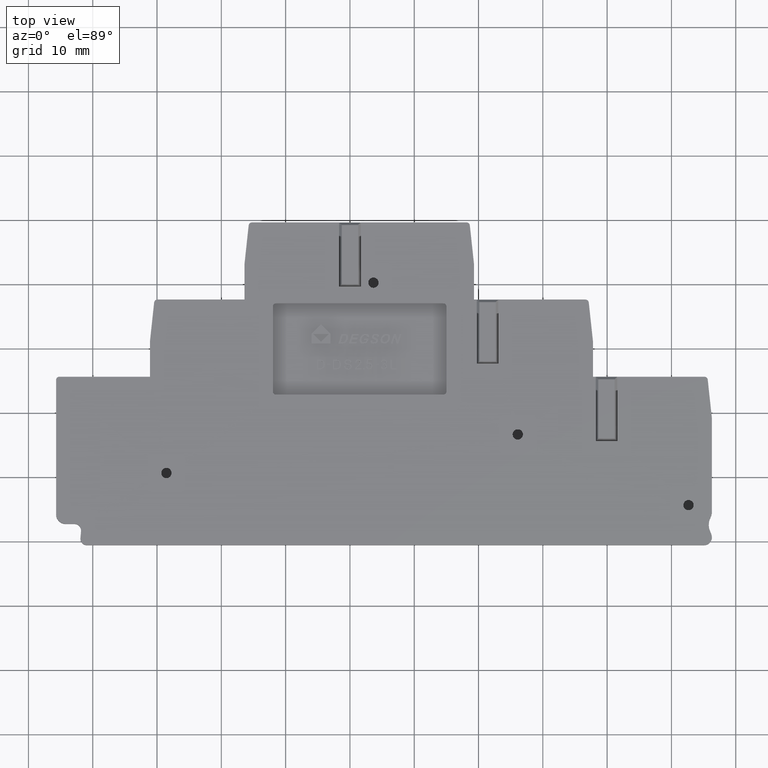
[diagram: clean part render]
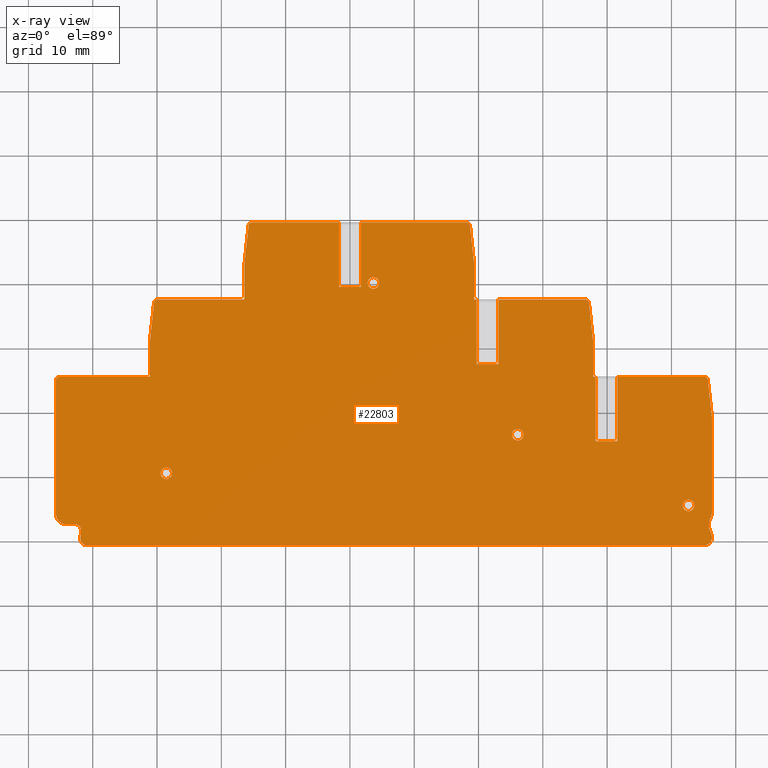
[diagram: x-ray — body ghosted, one internal face saturated and labeled with its STEP entity id]
A machine part, top view, then the same camera in x-ray: the body is ghosted and one INTERNAL B-rep face — a face not visible from any outside direction — is saturated and labeled: STEP entity #22803.
In plain terms, the highlighted planar face has unit normal (0, 0, -1).
Its self-contained STEP definition (entity closure, byte-faithful):
#925=PLANE('',#24342);
#1125=CIRCLE('',#23599,1.);
#1127=CIRCLE('',#23603,1.5);
#1130=CIRCLE('',#23607,0.999999999999994);
#1252=CIRCLE('',#24148,0.8899999999996);
#1254=CIRCLE('',#24151,0.8899999999996);
#1256=CIRCLE('',#24154,0.8899999999996);
#1258=CIRCLE('',#24157,0.8899999999996);
#1276=CIRCLE('',#24192,1.2);
#1279=CIRCLE('',#24196,2.);
#1281=CIRCLE('',#24199,2.);
#1283=CIRCLE('',#24202,2.5);
#1300=CIRCLE('',#24241,0.5);
#1303=CIRCLE('',#24247,2.);
#1304=CIRCLE('',#24250,0.5);
#1307=CIRCLE('',#24256,2.);
#1308=CIRCLE('',#24259,0.5);
#1311=CIRCLE('',#24267,0.5);
#1312=CIRCLE('',#24270,2.);
#1315=CIRCLE('',#24279,0.5);
#1316=CIRCLE('',#24282,2.);
#1319=CIRCLE('',#24291,0.5);
#1320=CIRCLE('',#24294,2.);
#2788=LINE('',#35361,#5326);
#2795=LINE('',#35383,#5333);
#3876=LINE('',#38783,#6414);
#3880=LINE('',#38795,#6418);
#3882=LINE('',#38800,#6420);
#3887=LINE('',#38813,#6425);
#3891=LINE('',#38825,#6429);
#3893=LINE('',#38830,#6431);
#3898=LINE('',#38843,#6436);
#3906=LINE('',#38863,#6444);
#3910=LINE('',#38871,#6448);
#3911=LINE('',#38873,#6449);
#3916=LINE('',#38883,#6454);
#3917=LINE('',#38885,#6455);
#3921=LINE('',#38897,#6459);
#3924=LINE('',#38906,#6462);
#3928=LINE('',#38915,#6466);
#3932=LINE('',#38923,#6470);
#3940=LINE('',#38938,#6478);
#3943=LINE('',#38944,#6481);
#3944=LINE('',#38946,#6482);
#3949=LINE('',#38959,#6487);
#3951=LINE('',#38967,#6489);
#3955=LINE('',#38976,#6493);
#3959=LINE('',#38984,#6497);
#3967=LINE('',#38999,#6505);
#3970=LINE('',#39005,#6508);
#3971=LINE('',#39007,#6509);
#3976=LINE('',#39020,#6514);
#4050=LINE('',#39175,#6588);
#4053=LINE('',#39350,#6591);
#5326=VECTOR('',#27124,1000.);
#5333=VECTOR('',#27145,1000.);
#6414=VECTOR('',#29488,1000.);
#6418=VECTOR('',#29500,1000.);
#6420=VECTOR('',#29504,1000.);
#6425=VECTOR('',#29517,1000.);
#6429=VECTOR('',#29529,1000.);
#6431=VECTOR('',#29533,1000.);
#6436=VECTOR('',#29546,1000.);
#6444=VECTOR('',#29562,1000.);
#6448=VECTOR('',#29566,1000.);
#6449=VECTOR('',#29569,1000.);
#6454=VECTOR('',#29576,1000.);
#6455=VECTOR('',#29579,1000.);
#6459=VECTOR('',#29591,1000.);
#6462=VECTOR('',#29602,1000.);
#6466=VECTOR('',#29608,1000.);
#6470=VECTOR('',#29612,1000.);
#6478=VECTOR('',#29622,1000.);
#6481=VECTOR('',#29627,1000.);
#6482=VECTOR('',#29630,1000.);
#6487=VECTOR('',#29643,1000.);
#6489=VECTOR('',#29653,1000.);
#6493=VECTOR('',#29659,1000.);
#6497=VECTOR('',#29663,1000.);
#6505=VECTOR('',#29673,1000.);
#6508=VECTOR('',#29678,1000.);
#6509=VECTOR('',#29681,1000.);
#6514=VECTOR('',#29694,1000.);
#6588=VECTOR('',#29854,1000.);
#6591=VECTOR('',#29867,1000.);
#12964=ORIENTED_EDGE('',*,*,#16140,.T.);
#12965=ORIENTED_EDGE('',*,*,#16138,.T.);
#12966=ORIENTED_EDGE('',*,*,#16136,.T.);
#12967=ORIENTED_EDGE('',*,*,#16134,.T.);
#12968=ORIENTED_EDGE('',*,*,#16443,.T.);
#12969=ORIENTED_EDGE('',*,*,#14806,.T.);
#12970=ORIENTED_EDGE('',*,*,#14810,.T.);
#12971=ORIENTED_EDGE('',*,*,#14819,.T.);
#12972=ORIENTED_EDGE('',*,*,#14821,.T.);
#12973=ORIENTED_EDGE('',*,*,#14814,.T.);
#12974=ORIENTED_EDGE('',*,*,#16205,.T.);
#12975=ORIENTED_EDGE('',*,*,#16206,.T.);
#12976=ORIENTED_EDGE('',*,*,#16211,.T.);
#12977=ORIENTED_EDGE('',*,*,#16213,.T.);
#12978=ORIENTED_EDGE('',*,*,#16217,.T.);
#12979=ORIENTED_EDGE('',*,*,#16220,.T.);
#12980=ORIENTED_EDGE('',*,*,#16221,.T.);
#12981=ORIENTED_EDGE('',*,*,#16226,.T.);
#12982=ORIENTED_EDGE('',*,*,#16228,.T.);
#12983=ORIENTED_EDGE('',*,*,#16232,.T.);
#12984=ORIENTED_EDGE('',*,*,#16235,.T.);
#12985=ORIENTED_EDGE('',*,*,#16236,.T.);
#12986=ORIENTED_EDGE('',*,*,#16249,.T.);
#12987=ORIENTED_EDGE('',*,*,#16250,.T.);
#12988=ORIENTED_EDGE('',*,*,#16255,.F.);
#12989=ORIENTED_EDGE('',*,*,#16256,.T.);
#12990=ORIENTED_EDGE('',*,*,#16245,.T.);
#12991=ORIENTED_EDGE('',*,*,#16260,.T.);
#12992=ORIENTED_EDGE('',*,*,#16262,.T.);
#12993=ORIENTED_EDGE('',*,*,#16264,.T.);
#12994=ORIENTED_EDGE('',*,*,#16267,.T.);
#12995=ORIENTED_EDGE('',*,*,#16275,.T.);
#12996=ORIENTED_EDGE('',*,*,#16283,.F.);
#12997=ORIENTED_EDGE('',*,*,#16286,.F.);
#12998=ORIENTED_EDGE('',*,*,#16287,.F.);
#12999=ORIENTED_EDGE('',*,*,#16271,.T.);
#13000=ORIENTED_EDGE('',*,*,#16291,.T.);
#13001=ORIENTED_EDGE('',*,*,#16294,.T.);
#13002=ORIENTED_EDGE('',*,*,#16295,.T.);
#13003=ORIENTED_EDGE('',*,*,#16298,.T.);
#13004=ORIENTED_EDGE('',*,*,#16306,.T.);
#13005=ORIENTED_EDGE('',*,*,#16314,.T.);
#13006=ORIENTED_EDGE('',*,*,#16317,.F.);
#13007=ORIENTED_EDGE('',*,*,#16318,.F.);
#13008=ORIENTED_EDGE('',*,*,#16302,.T.);
#13009=ORIENTED_EDGE('',*,*,#16322,.T.);
#13010=ORIENTED_EDGE('',*,*,#16325,.T.);
#13011=ORIENTED_EDGE('',*,*,#16326,.T.);
#13012=ORIENTED_EDGE('',*,*,#16401,.T.);
#13013=ORIENTED_EDGE('',*,*,#16181,.F.);
#13014=ORIENTED_EDGE('',*,*,#16186,.F.);
#13015=ORIENTED_EDGE('',*,*,#16183,.F.);
#13016=ORIENTED_EDGE('',*,*,#16174,.T.);
#14806=EDGE_CURVE('',#17561,#17562,#1125,.T.);
#14810=EDGE_CURVE('',#17562,#17565,#2788,.T.);
#14814=EDGE_CURVE('',#17569,#17567,#1127,.T.);
#14819=EDGE_CURVE('',#17565,#17572,#1130,.T.);
#14821=EDGE_CURVE('',#17572,#17569,#2795,.T.);
#16134=EDGE_CURVE('',#18471,#18471,#1252,.T.);
#16136=EDGE_CURVE('',#18473,#18473,#1254,.T.);
#16138=EDGE_CURVE('',#18475,#18475,#1256,.T.);
#16140=EDGE_CURVE('',#18477,#18477,#1258,.T.);
#16174=EDGE_CURVE('',#18503,#18504,#1276,.T.);
#16181=EDGE_CURVE('',#18510,#18508,#1279,.T.);
#16183=EDGE_CURVE('',#18503,#18512,#1281,.T.);
#16186=EDGE_CURVE('',#18512,#18510,#1283,.T.);
#16205=EDGE_CURVE('',#17567,#18530,#3876,.T.);
#16206=EDGE_CURVE('',#18530,#18531,#1300,.T.);
#16211=EDGE_CURVE('',#18531,#18534,#3880,.T.);
#16213=EDGE_CURVE('',#18534,#18536,#3882,.T.);
#16217=EDGE_CURVE('',#18536,#18538,#1303,.T.);
#16220=EDGE_CURVE('',#18538,#18540,#3887,.T.);
#16221=EDGE_CURVE('',#18540,#18541,#1304,.T.);
#16226=EDGE_CURVE('',#18541,#18544,#3891,.T.);
#16228=EDGE_CURVE('',#18544,#18546,#3893,.T.);
#16232=EDGE_CURVE('',#18546,#18548,#1307,.T.);
#16235=EDGE_CURVE('',#18548,#18550,#3898,.T.);
#16236=EDGE_CURVE('',#18550,#18551,#1308,.T.);
#16245=EDGE_CURVE('',#18559,#18558,#3906,.T.);
#16249=EDGE_CURVE('',#18551,#18562,#3910,.T.);
#16250=EDGE_CURVE('',#18562,#18563,#3911,.T.);
#16255=EDGE_CURVE('',#18566,#18563,#3916,.T.);
#16256=EDGE_CURVE('',#18566,#18559,#3917,.T.);
#16260=EDGE_CURVE('',#18558,#18568,#1311,.T.);
#16262=EDGE_CURVE('',#18568,#18570,#3921,.T.);
#16264=EDGE_CURVE('',#18570,#18571,#1312,.T.);
#16267=EDGE_CURVE('',#18571,#18573,#3924,.T.);
#16271=EDGE_CURVE('',#18577,#18576,#3928,.T.);
#16275=EDGE_CURVE('',#18573,#18580,#3932,.T.);
#16283=EDGE_CURVE('',#18586,#18580,#3940,.T.);
#16286=EDGE_CURVE('',#18588,#18586,#3943,.T.);
#16287=EDGE_CURVE('',#18577,#18588,#3944,.T.);
#16291=EDGE_CURVE('',#18576,#18590,#1315,.T.);
#16294=EDGE_CURVE('',#18590,#18592,#3949,.T.);
#16295=EDGE_CURVE('',#18592,#18593,#1316,.T.);
#16298=EDGE_CURVE('',#18593,#18595,#3951,.T.);
#16302=EDGE_CURVE('',#18599,#18598,#3955,.T.);
#16306=EDGE_CURVE('',#18595,#18602,#3959,.T.);
#16314=EDGE_CURVE('',#18602,#18608,#3967,.T.);
#16317=EDGE_CURVE('',#18610,#18608,#3970,.T.);
#16318=EDGE_CURVE('',#18599,#18610,#3971,.T.);
#16322=EDGE_CURVE('',#18598,#18612,#1319,.T.);
#16325=EDGE_CURVE('',#18612,#18614,#3976,.T.);
#16326=EDGE_CURVE('',#18614,#18615,#1320,.T.);
#16401=EDGE_CURVE('',#18615,#18508,#4050,.T.);
#16443=EDGE_CURVE('',#18504,#17561,#4053,.T.);
#17561=VERTEX_POINT('',#35353);
#17562=VERTEX_POINT('',#35354);
#17565=VERTEX_POINT('',#35362);
#17567=VERTEX_POINT('',#35368);
#17569=VERTEX_POINT('',#35371);
#17572=VERTEX_POINT('',#35379);
#18471=VERTEX_POINT('',#38609);
#18473=VERTEX_POINT('',#38614);
#18475=VERTEX_POINT('',#38619);
#18477=VERTEX_POINT('',#38624);
#18503=VERTEX_POINT('',#38701);
#18504=VERTEX_POINT('',#38702);
#18508=VERTEX_POINT('',#38711);
#18510=VERTEX_POINT('',#38715);
#18512=VERTEX_POINT('',#38721);
#18530=VERTEX_POINT('',#38782);
#18531=VERTEX_POINT('',#38786);
#18534=VERTEX_POINT('',#38794);
#18536=VERTEX_POINT('',#38799);
#18538=VERTEX_POINT('',#38806);
#18540=VERTEX_POINT('',#38812);
#18541=VERTEX_POINT('',#38816);
#18544=VERTEX_POINT('',#38824);
#18546=VERTEX_POINT('',#38829);
#18548=VERTEX_POINT('',#38836);
#18550=VERTEX_POINT('',#38842);
#18551=VERTEX_POINT('',#38846);
#18558=VERTEX_POINT('',#38862);
#18559=VERTEX_POINT('',#38864);
#18562=VERTEX_POINT('',#38870);
#18563=VERTEX_POINT('',#38874);
#18566=VERTEX_POINT('',#38882);
#18568=VERTEX_POINT('',#38891);
#18570=VERTEX_POINT('',#38896);
#18571=VERTEX_POINT('',#38901);
#18573=VERTEX_POINT('',#38907);
#18576=VERTEX_POINT('',#38914);
#18577=VERTEX_POINT('',#38916);
#18580=VERTEX_POINT('',#38922);
#18586=VERTEX_POINT('',#38937);
#18588=VERTEX_POINT('',#38943);
#18590=VERTEX_POINT('',#38952);
#18592=VERTEX_POINT('',#38958);
#18593=VERTEX_POINT('',#38962);
#18595=VERTEX_POINT('',#38968);
#18598=VERTEX_POINT('',#38975);
#18599=VERTEX_POINT('',#38977);
#18602=VERTEX_POINT('',#38983);
#18608=VERTEX_POINT('',#38998);
#18610=VERTEX_POINT('',#39004);
#18612=VERTEX_POINT('',#39013);
#18614=VERTEX_POINT('',#39019);
#18615=VERTEX_POINT('',#39023);
#20265=EDGE_LOOP('',(#12964));
#20266=EDGE_LOOP('',(#12965));
#20267=EDGE_LOOP('',(#12966));
#20268=EDGE_LOOP('',(#12967));
#20269=EDGE_LOOP('',(#12968,#12969,#12970,#12971,#12972,#12973,#12974,#12975,
#12976,#12977,#12978,#12979,#12980,#12981,#12982,#12983,#12984,#12985,#12986,
#12987,#12988,#12989,#12990,#12991,#12992,#12993,#12994,#12995,#12996,#12997,
#12998,#12999,#13000,#13001,#13002,#13003,#13004,#13005,#13006,#13007,#13008,
#13009,#13010,#13011,#13012,#13013,#13014,#13015,#13016));
#21547=FACE_BOUND('',#20265,.T.);
#21548=FACE_BOUND('',#20266,.T.);
#21549=FACE_BOUND('',#20267,.T.);
#21550=FACE_BOUND('',#20268,.T.);
#21551=FACE_BOUND('',#20269,.T.);
#22803=ADVANCED_FACE('',(#21547,#21548,#21549,#21550,#21551),#925,.T.);
#23599=AXIS2_PLACEMENT_3D('',#35352,#27116,#27117);
#23603=AXIS2_PLACEMENT_3D('',#35370,#27130,#27131);
#23607=AXIS2_PLACEMENT_3D('',#35380,#27140,#27141);
#24148=AXIS2_PLACEMENT_3D('',#38608,#29281,#29282);
#24151=AXIS2_PLACEMENT_3D('',#38613,#29287,#29288);
#24154=AXIS2_PLACEMENT_3D('',#38618,#29293,#29294);
#24157=AXIS2_PLACEMENT_3D('',#38623,#29299,#29300);
#24192=AXIS2_PLACEMENT_3D('',#38700,#29385,#29386);
#24196=AXIS2_PLACEMENT_3D('',#38716,#29397,#29398);
#24199=AXIS2_PLACEMENT_3D('',#38720,#29403,#29404);
#24202=AXIS2_PLACEMENT_3D('',#38725,#29410,#29411);
#24241=AXIS2_PLACEMENT_3D('',#38785,#29491,#29492);
#24247=AXIS2_PLACEMENT_3D('',#38807,#29511,#29512);
#24250=AXIS2_PLACEMENT_3D('',#38815,#29520,#29521);
#24256=AXIS2_PLACEMENT_3D('',#38837,#29540,#29541);
#24259=AXIS2_PLACEMENT_3D('',#38845,#29549,#29550);
#24267=AXIS2_PLACEMENT_3D('',#38892,#29586,#29587);
#24270=AXIS2_PLACEMENT_3D('',#38900,#29595,#29596);
#24279=AXIS2_PLACEMENT_3D('',#38953,#29637,#29638);
#24282=AXIS2_PLACEMENT_3D('',#38961,#29646,#29647);
#24291=AXIS2_PLACEMENT_3D('',#39014,#29688,#29689);
#24294=AXIS2_PLACEMENT_3D('',#39022,#29697,#29698);
#24342=AXIS2_PLACEMENT_3D('',#39352,#29870,#29871);
#27116=DIRECTION('',(0.,0.,-1.));
#27117=DIRECTION('',(-1.,0.,0.));
#27124=DIRECTION('',(0.0871557434716022,0.996194698028409,0.));
#27130=DIRECTION('',(0.,0.,-1.));
#27131=DIRECTION('',(-1.,0.,0.));
#27140=DIRECTION('',(0.,0.,1.));
#27141=DIRECTION('',(-1.,0.,0.));
#27145=DIRECTION('',(-1.,1.49846867589017E-14,0.));
#29281=DIRECTION('',(0.,0.,1.));
#29282=DIRECTION('',(-1.,0.,0.));
#29287=DIRECTION('',(0.,0.,1.));
#29288=DIRECTION('',(-1.,0.,0.));
#29293=DIRECTION('',(0.,0.,1.));
#29294=DIRECTION('',(-1.,0.,0.));
#29299=DIRECTION('',(0.,0.,1.));
#29300=DIRECTION('',(-1.,0.,0.));
#29385=DIRECTION('',(0.,0.,-1.));
#29386=DIRECTION('',(-1.,0.,0.));
#29397=DIRECTION('',(0.,0.,1.));
#29398=DIRECTION('',(-1.,0.,0.));
#29403=DIRECTION('',(0.,0.,1.));
#29404=DIRECTION('',(-1.,0.,0.));
#29410=DIRECTION('',(0.,0.,-1.));
#29411=DIRECTION('',(-1.,0.,0.));
#29488=DIRECTION('',(-3.75856753128315E-15,1.,0.));
#29491=DIRECTION('',(0.,0.,-1.));
#29492=DIRECTION('',(-1.,0.,0.));
#29500=DIRECTION('',(1.,2.36016799452626E-15,0.));
#29504=DIRECTION('',(-3.31351660406866E-15,1.,0.));
#29511=DIRECTION('',(0.,0.,-1.));
#29512=DIRECTION('',(-1.,0.,0.));
#29517=DIRECTION('',(0.107073199719949,0.994251140256692,0.));
#29520=DIRECTION('',(0.,0.,-1.));
#29521=DIRECTION('',(-1.,0.,0.));
#29529=DIRECTION('',(1.,2.36016799452626E-15,0.));
#29533=DIRECTION('',(-3.31351660406866E-15,1.,0.));
#29540=DIRECTION('',(0.,0.,-1.));
#29541=DIRECTION('',(-1.,0.,0.));
#29546=DIRECTION('',(0.107073199719949,0.994251140256692,0.));
#29549=DIRECTION('',(0.,0.,-1.));
#29550=DIRECTION('',(-1.,0.,0.));
#29562=DIRECTION('',(1.,2.28380961825284E-15,0.));
#29566=DIRECTION('',(1.,2.28380961825284E-15,0.));
#29569=DIRECTION('',(0.,-1.,0.));
#29576=DIRECTION('',(-1.,0.,0.));
#29579=DIRECTION('',(0.,1.,0.));
#29586=DIRECTION('',(0.,0.,-1.));
#29587=DIRECTION('',(-1.,0.,0.));
#29591=DIRECTION('',(0.107073199719953,-0.994251140256691,0.));
#29595=DIRECTION('',(0.,0.,-1.));
#29596=DIRECTION('',(-1.,0.,0.));
#29602=DIRECTION('',(3.75856754205758E-15,-1.,0.));
#29608=DIRECTION('',(1.,0.,0.));
#29612=DIRECTION('',(1.,0.,0.));
#29622=DIRECTION('',(0.,1.,0.));
#29627=DIRECTION('',(-1.,0.,0.));
#29630=DIRECTION('',(0.,-1.,0.));
#29637=DIRECTION('',(0.,0.,-1.));
#29638=DIRECTION('',(-1.,0.,0.));
#29643=DIRECTION('',(0.107073199719951,-0.994251140256692,0.));
#29646=DIRECTION('',(0.,0.,-1.));
#29647=DIRECTION('',(-1.,0.,0.));
#29653=DIRECTION('',(3.46944694200445E-15,-1.,0.));
#29659=DIRECTION('',(1.,0.,0.));
#29663=DIRECTION('',(1.,0.,0.));
#29673=DIRECTION('',(0.,-1.,0.));
#29678=DIRECTION('',(-1.,0.,0.));
#29681=DIRECTION('',(0.,-1.,0.));
#29688=DIRECTION('',(0.,0.,-1.));
#29689=DIRECTION('',(-1.,0.,0.));
#29694=DIRECTION('',(0.107073199719951,-0.994251140256692,0.));
#29697=DIRECTION('',(0.,0.,-1.));
#29698=DIRECTION('',(-1.,0.,0.));
#29854=DIRECTION('',(3.46944694200445E-15,-1.,0.));
#29867=DIRECTION('',(-1.,0.,0.));
#29870=DIRECTION('',(0.,0.,-1.));
#29871=DIRECTION('',(-1.,0.,0.));
#35352=CARTESIAN_POINT('',(-40.916902825996,-39.5999999999999,50.));
#35353=CARTESIAN_POINT('',(-40.916902825996,-40.5999999999999,50.0000000020164));
#35354=CARTESIAN_POINT('',(-41.9130975240244,-39.5128442565283,50.));
#35361=CARTESIAN_POINT('',(-38.1640537258614,3.33892208315363,50.));
#35362=CARTESIAN_POINT('',(-41.8146121915713,-38.3871517648645,50.));
#35368=CARTESIAN_POINT('',(-45.6999999996991,-35.8000000000001,50.));
#35370=CARTESIAN_POINT('',(-44.1999999996991,-35.8000000000001,50.));
#35371=CARTESIAN_POINT('',(-44.1999999996991,-37.3000000000001,50.));
#35379=CARTESIAN_POINT('',(-42.8108030116903,-37.3,50.));
#35380=CARTESIAN_POINT('',(-42.8108072376747,-38.3,50.));
#35383=CARTESIAN_POINT('',(-5.58928816107045E-13,-37.3000000000006,50.));
#38608=CARTESIAN_POINT('',(-28.5499986944379,-29.3999984882853,50.));
#38609=CARTESIAN_POINT('',(-29.4399986944375,-29.3999984882853,50.));
#38613=CARTESIAN_POINT('',(3.65000000000001,0.199999987503566,50.));
#38614=CARTESIAN_POINT('',(2.76000000000041,0.199999987503566,50.));
#38618=CARTESIAN_POINT('',(26.0999997950337,-23.399998940191,50.));
#38619=CARTESIAN_POINT('',(25.2099997950341,-23.399998940191,50.));
#38623=CARTESIAN_POINT('',(52.6500013050335,-34.399998488285,50.));
#38624=CARTESIAN_POINT('',(51.7600013050339,-34.399998488285,50.));
#38700=CARTESIAN_POINT('',(55.0941030948453,-39.3999999999999,50.));
#38701=CARTESIAN_POINT('',(56.2852577367565,-39.2545674759433,50.));
#38702=CARTESIAN_POINT('',(55.0941030948453,-40.5999999999999,50.));
#38711=CARTESIAN_POINT('',(56.2999999984649,-35.3738493904196,50.0000000020164));
#38715=CARTESIAN_POINT('',(56.0777777780157,-36.2900950850015,50.));
#38716=CARTESIAN_POINT('',(54.300000000238,-35.3738493904196,50.));
#38720=CARTESIAN_POINT('',(54.3000000002379,-39.4969550160376,50.));
#38721=CARTESIAN_POINT('',(56.0777777780157,-38.5807093214559,50.));
#38725=CARTESIAN_POINT('',(58.3000000002379,-37.4354022032287,50.));
#38782=CARTESIAN_POINT('',(-45.7000000000001,-14.8999999999998,50.));
#38783=CARTESIAN_POINT('',(-45.7000000000002,-1.7176653617964E-13,50.));
#38785=CARTESIAN_POINT('',(-45.2000000000001,-14.8999999999998,50.));
#38786=CARTESIAN_POINT('',(-45.2000000000001,-14.3999999999998,50.));
#38794=CARTESIAN_POINT('',(-31.1000000000001,-14.3999999999998,50.));
#38795=CARTESIAN_POINT('',(-45.7000000000001,-14.3999999999998,50.));
#38799=CARTESIAN_POINT('',(-31.1000000000001,-9.00738186134988,50.));
#38800=CARTESIAN_POINT('',(-31.1000000000002,-1.03050366386536E-13,50.));
#38806=CARTESIAN_POINT('',(-31.0885022805135,-8.79323546190997,50.));
#38807=CARTESIAN_POINT('',(-29.1000000000001,-9.00738186134987,50.));
#38812=CARTESIAN_POINT('',(-30.4480806738614,-2.84646340014,50.));
#38813=CARTESIAN_POINT('',(-29.7959756668228,3.20879737950393,50.));
#38815=CARTESIAN_POINT('',(-29.950955103733,-2.89999999999998,50.));
#38816=CARTESIAN_POINT('',(-29.950955103733,-2.39999999999998,50.));
#38824=CARTESIAN_POINT('',(-16.4000000000001,-2.39999999999994,50.));
#38825=CARTESIAN_POINT('',(-31.1000000000001,-2.39999999999998,50.));
#38829=CARTESIAN_POINT('',(-16.4000000000001,2.99261813864997,50.));
#38830=CARTESIAN_POINT('',(-16.4000000000001,-5.43416723067264E-14,50.));
#38836=CARTESIAN_POINT('',(-16.3885022805135,3.20676453808987,50.));
#38837=CARTESIAN_POINT('',(-14.4000000000001,2.99261813864997,50.));
#38842=CARTESIAN_POINT('',(-15.7480806738614,9.15353659985984,50.));
#38843=CARTESIAN_POINT('',(-16.5419981282172,1.78144595226951,50.));
#38845=CARTESIAN_POINT('',(-15.250955103733,9.09999999999987,50.));
#38846=CARTESIAN_POINT('',(-15.250955103733,9.59999999999987,50.));
#38862=CARTESIAN_POINT('',(18.150955103419,9.59999999999994,50.));
#38863=CARTESIAN_POINT('',(-16.4000000000002,9.59999999999987,50.));
#38864=CARTESIAN_POINT('',(1.67499987370023,9.59999999999991,50.));
#38870=CARTESIAN_POINT('',(-1.67500012629987,9.5999999999999,50.));
#38871=CARTESIAN_POINT('',(-16.4000000000002,9.59999999999987,50.));
#38873=CARTESIAN_POINT('',(-1.67500012629987,-0.399999999996474,50.));
#38874=CARTESIAN_POINT('',(-1.67500012629987,-0.399999999996474,50.));
#38882=CARTESIAN_POINT('',(1.67499987370023,-0.399999999996474,50.));
#38883=CARTESIAN_POINT('',(-1.67500012629987,-0.399999999996474,50.));
#38885=CARTESIAN_POINT('',(1.67499987370023,-0.399999999996474,50.));
#38891=CARTESIAN_POINT('',(18.6480806735474,9.15353659985992,50.));
#38892=CARTESIAN_POINT('',(18.150955103419,9.09999999999994,50.));
#38896=CARTESIAN_POINT('',(19.2885022801996,3.20676453808994,50.));
#38897=CARTESIAN_POINT('',(19.4087505846219,2.0901731398824,50.));
#38900=CARTESIAN_POINT('',(17.2999999996862,2.99261813865003,50.));
#38901=CARTESIAN_POINT('',(19.2999999996862,2.99261813865004,50.));
#38906=CARTESIAN_POINT('',(19.2999999996861,9.59999999999995,50.));
#38907=CARTESIAN_POINT('',(19.2999999996862,-2.39999996560025,50.));
#38914=CARTESIAN_POINT('',(36.6509551022464,-2.39999996560025,50.));
#38915=CARTESIAN_POINT('',(19.2999999996862,-2.39999996560025,50.));
#38916=CARTESIAN_POINT('',(23.0750473258309,-2.39999996560025,50.));
#38922=CARTESIAN_POINT('',(19.7250473258308,-2.39999996560025,50.));
#38923=CARTESIAN_POINT('',(19.2999999996862,-2.39999996560025,50.));
#38937=CARTESIAN_POINT('',(19.7250473258308,-12.3999999686254,50.));
#38938=CARTESIAN_POINT('',(19.7250473258308,-12.3999999686254,50.));
#38943=CARTESIAN_POINT('',(23.0750473258309,-12.3999999686254,50.));
#38944=CARTESIAN_POINT('',(23.0750473258309,-12.3999999686254,50.));
#38946=CARTESIAN_POINT('',(23.0750473258309,-12.3999999686254,50.));
#38952=CARTESIAN_POINT('',(37.1480806723747,-2.84646336574027,50.));
#38953=CARTESIAN_POINT('',(36.6509551022464,-2.89999996560025,50.));
#38958=CARTESIAN_POINT('',(37.7885022790269,-8.79323542751027,50.));
#38959=CARTESIAN_POINT('',(36.4191623793569,3.92206364085382,50.));
#38961=CARTESIAN_POINT('',(35.7999999985135,-9.00738182695017,50.));
#38962=CARTESIAN_POINT('',(37.7999999985135,-9.00738182695017,50.));
#38967=CARTESIAN_POINT('',(37.7999999985135,-2.39999996560025,50.));
#38968=CARTESIAN_POINT('',(37.7999999985135,-14.4000000000121,50.));
#38975=CARTESIAN_POINT('',(55.1509551021977,-14.3999999982885,50.0000000020164));
#38976=CARTESIAN_POINT('',(37.7999999996375,-14.3999999982885,50.0000000020164));
#38977=CARTESIAN_POINT('',(41.5750473257823,-14.3999999982885,50.0000000020164));
#38983=CARTESIAN_POINT('',(38.2250473258308,-14.3999999999997,50.));
#38984=CARTESIAN_POINT('',(37.7999999985135,-14.3999999999997,50.));
#38998=CARTESIAN_POINT('',(38.2250473258308,-24.3999999686254,50.));
#38999=CARTESIAN_POINT('',(38.2250473258308,0.,50.));
#39004=CARTESIAN_POINT('',(41.5750473257823,-24.3999999686254,50.0000000020164));
#39005=CARTESIAN_POINT('',(0.,-24.3999999686254,50.));
#39007=CARTESIAN_POINT('',(41.5750473257823,-24.4000000013137,50.0000000020164));
#39013=CARTESIAN_POINT('',(55.6480806723261,-14.8464633984286,50.));
#39014=CARTESIAN_POINT('',(55.1509551021977,-14.8999999982885,50.0000000020164));
#39019=CARTESIAN_POINT('',(56.2885022789782,-20.7932354601986,50.0000000020164));
#39020=CARTESIAN_POINT('',(54.9191623793082,-8.07793639183447,50.0000000020164));
#39022=CARTESIAN_POINT('',(54.2999999984648,-21.0073818596385,50.0000000020164));
#39023=CARTESIAN_POINT('',(56.2999999984648,-21.0073818596385,50.));
#39175=CARTESIAN_POINT('',(56.2999999984648,-14.3999999982885,50.0000000020164));
#39350=CARTESIAN_POINT('',(18.4999999999513,-40.5999999999999,50.0000000020164));
#39352=CARTESIAN_POINT('',(-44.0000001262612,-34.9999984555973,50.));